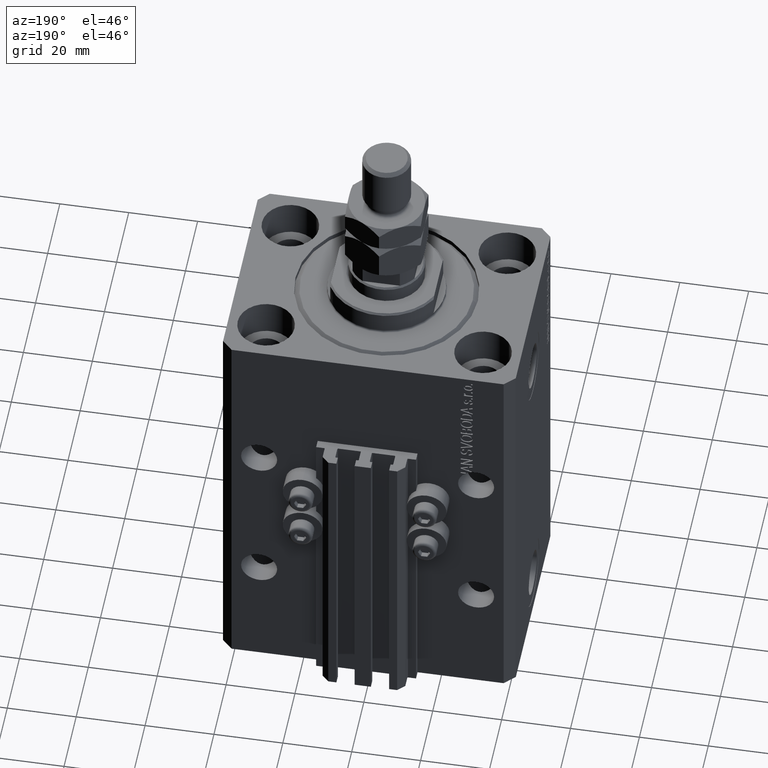
[diagram: clean part render]
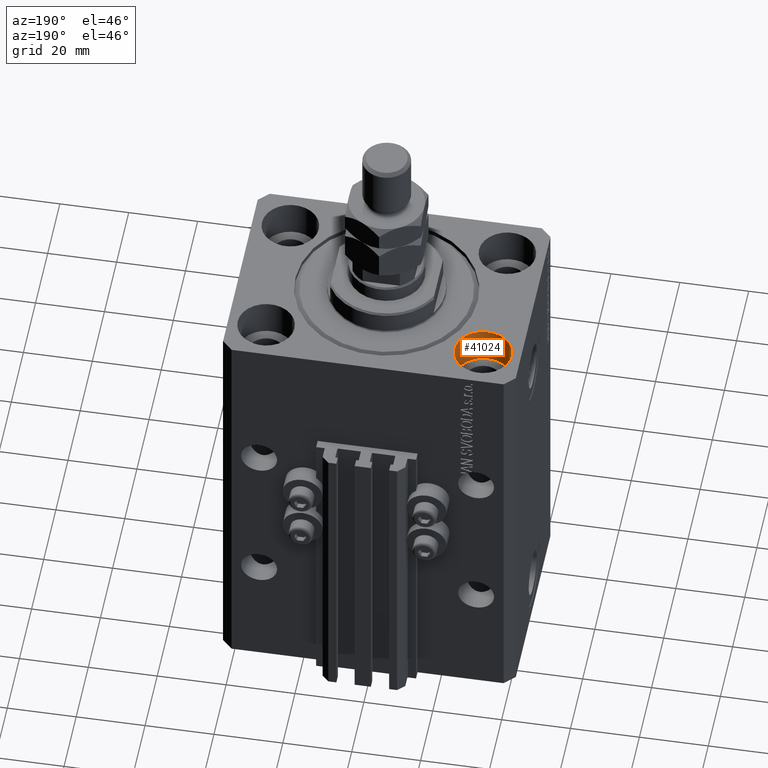
[diagram: same view with one face highlighted and labeled with its STEP entity id]
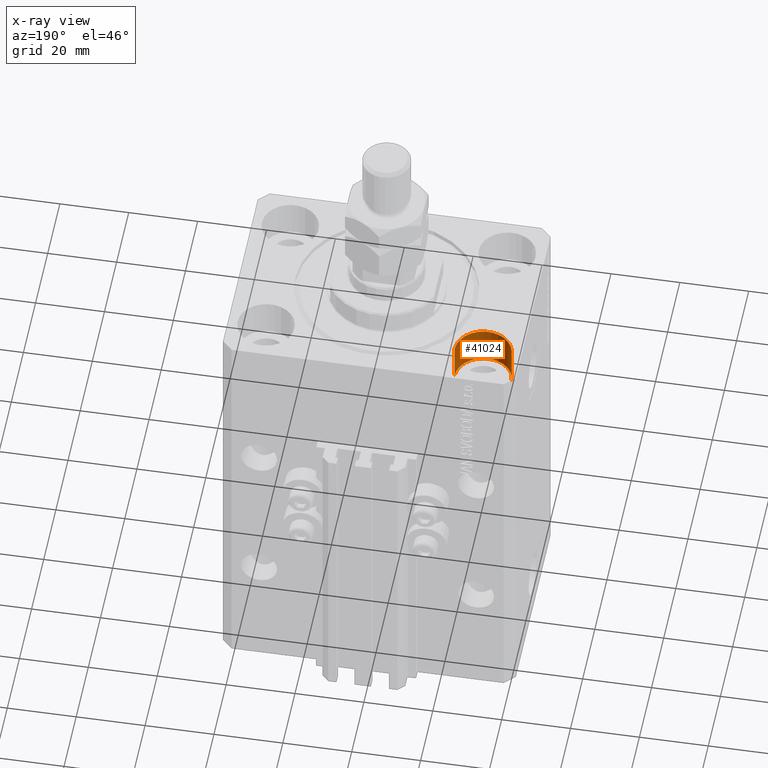
[diagram: x-ray of the same camera — body ghosted, the highlighted face saturated]
A machine part, auxiliary view. The second image highlights one B-rep face of the part: STEP entity #41024.
The next image is the same camera in x-ray: the body ghosted, the highlighted face saturated — about 0% of this face is hidden behind the body in this view.
In plain terms, the highlighted cylindrical surface (edge-blend (fillet) strip) has radius 8.25 mm, axis along (0, 0, 1).
Its self-contained STEP definition (entity closure, byte-faithful):
#3053 = CIRCLE ( 'NONE', #24978, 8.250000000000000000 ) ;
#3587 = EDGE_CURVE ( 'NONE', #36307, #13633, #40308, .T. ) ;
#5094 = AXIS2_PLACEMENT_3D ( 'NONE', #5172, #9980, #33080 ) ;
#5172 = CARTESIAN_POINT ( 'NONE',  ( -31.50000000000000000, 20.00000000000000000, -11.00000000000000000 ) ) ;
#5270 = DIRECTION ( 'NONE',  ( 0.000000000000000000, 0.000000000000000000, 1.000000000000000000 ) ) ;
#6256 = CARTESIAN_POINT ( 'NONE',  ( -39.75000000000000000, 20.00000000000000000, 0.000000000000000000 ) ) ;
#8395 = EDGE_CURVE ( 'NONE', #23249, #48632, #3053, .T. ) ;
#8582 = CARTESIAN_POINT ( 'NONE',  ( -31.50000000000000000, 20.00000000000000000, -11.00000000000000000 ) ) ;
#9980 = DIRECTION ( 'NONE',  ( -0.000000000000000000, -0.000000000000000000, 1.000000000000000000 ) ) ;
#11954 = AXIS2_PLACEMENT_3D ( 'NONE', #8582, #5270, #20775 ) ;
#13370 = ORIENTED_EDGE ( 'NONE', *, *, #3587, .F. ) ;
#13633 = VERTEX_POINT ( 'NONE', #33205 ) ;
#13726 = DIRECTION ( 'NONE',  ( -0.000000000000000000, -0.000000000000000000, 1.000000000000000000 ) ) ;
#14038 = FACE_OUTER_BOUND ( 'NONE', #25333, .T. ) ;
#18816 = EDGE_CURVE ( 'NONE', #13633, #48632, #45886, .T. ) ;
#18959 = ORIENTED_EDGE ( 'NONE', *, *, #8395, .T. ) ;
#20775 = DIRECTION ( 'NONE',  ( 1.000000000000000000, 0.000000000000000000, 0.000000000000000000 ) ) ;
#21104 = LINE ( 'NONE', #48499, #34936 ) ;
#23249 = VERTEX_POINT ( 'NONE', #6256 ) ;
#24978 = AXIS2_PLACEMENT_3D ( 'NONE', #34898, #31106, #34161 ) ;
#25333 = EDGE_LOOP ( 'NONE', ( #13370, #30755, #18959, #30666 ) ) ;
#30666 = ORIENTED_EDGE ( 'NONE', *, *, #18816, .F. ) ;
#30755 = ORIENTED_EDGE ( 'NONE', *, *, #37941, .T. ) ;
#31106 = DIRECTION ( 'NONE',  ( 0.000000000000000000, 0.000000000000000000, 1.000000000000000000 ) ) ;
#33080 = DIRECTION ( 'NONE',  ( 1.000000000000000000, 0.000000000000000000, 0.000000000000000000 ) ) ;
#33205 = CARTESIAN_POINT ( 'NONE',  ( -23.25000000000000000, 20.00000000000000000, -11.00000000000000000 ) ) ;
#34161 = DIRECTION ( 'NONE',  ( 1.000000000000000000, 0.000000000000000000, 0.000000000000000000 ) ) ;
#34458 = CARTESIAN_POINT ( 'NONE',  ( -23.25000000000000000, 20.00000000000000000, -11.00000000000000000 ) ) ;
#34898 = CARTESIAN_POINT ( 'NONE',  ( -31.50000000000000000, 20.00000000000000000, 0.000000000000000000 ) ) ;
#34936 = VECTOR ( 'NONE', #13726, 1000.000000000000000 ) ;
#36307 = VERTEX_POINT ( 'NONE', #42817 ) ;
#37941 = EDGE_CURVE ( 'NONE', #36307, #23249, #21104, .T. ) ;
#40034 = VECTOR ( 'NONE', #42087, 1000.000000000000000 ) ;
#40308 = CIRCLE ( 'NONE', #11954, 8.250000000000000000 ) ;
#41024 = ADVANCED_FACE ( 'NONE', ( #14038 ), #44750, .F. ) ;
#42087 = DIRECTION ( 'NONE',  ( -0.000000000000000000, -0.000000000000000000, 1.000000000000000000 ) ) ;
#42817 = CARTESIAN_POINT ( 'NONE',  ( -39.75000000000000000, 20.00000000000000000, -11.00000000000000000 ) ) ;
#44750 = CYLINDRICAL_SURFACE ( 'NONE', #5094, 8.250000000000000000 ) ;
#45886 = LINE ( 'NONE', #34458, #40034 ) ;
#48499 = CARTESIAN_POINT ( 'NONE',  ( -39.75000000000000000, 20.00000000000000000, -11.00000000000000000 ) ) ;
#48632 = VERTEX_POINT ( 'NONE', #49941 ) ;
#49941 = CARTESIAN_POINT ( 'NONE',  ( -23.25000000000000000, 20.00000000000000000, 0.000000000000000000 ) ) ;